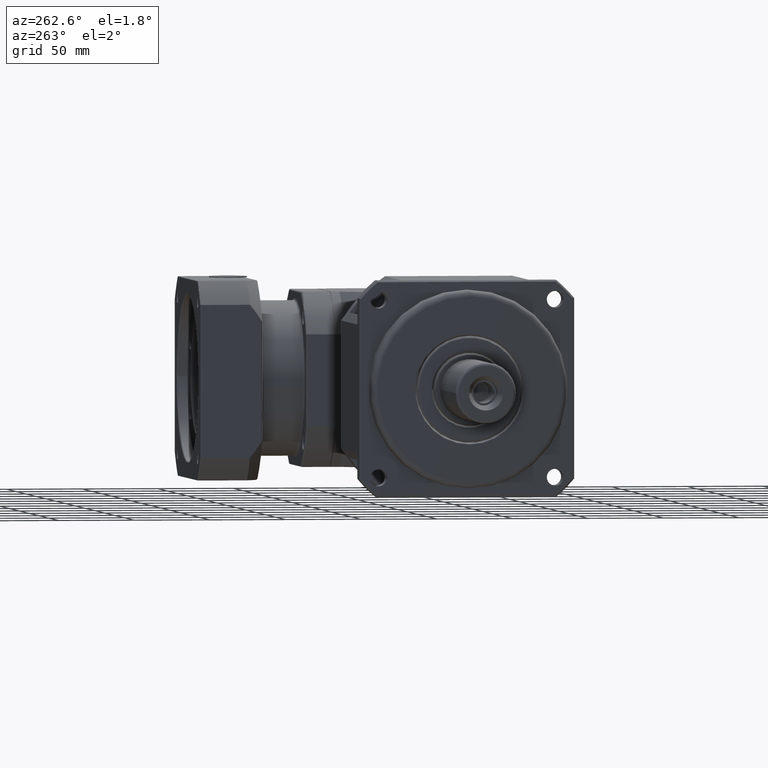
[diagram: clean part render]
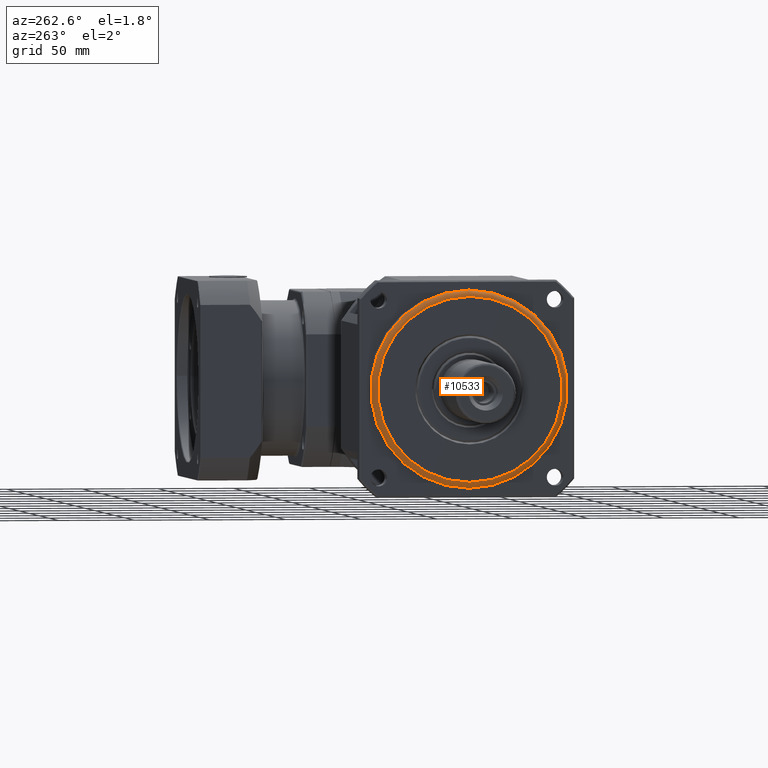
[diagram: same view with one face highlighted and labeled with its STEP entity id]
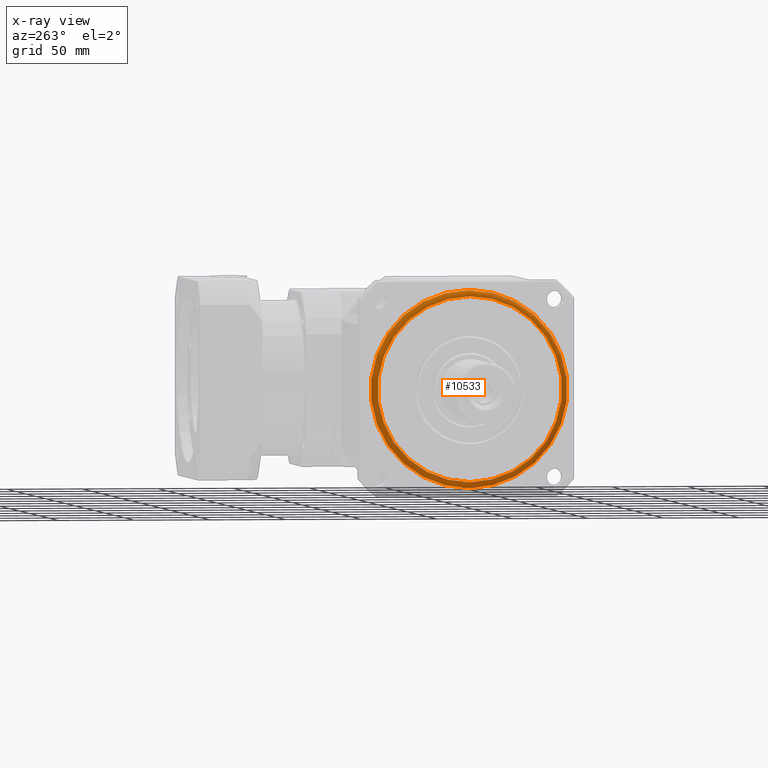
[diagram: x-ray of the same camera — body ghosted, the highlighted face saturated]
A machine part, auxiliary view. The second image highlights one B-rep face of the part: STEP entity #10533.
The next image is the same camera in x-ray: the body ghosted, the highlighted face saturated — about 0% of this face is hidden behind the body in this view.
In plain terms, the highlighted toroidal blend (fillet) surface has major radius 61 mm and minor (blend) radius 4 mm.
Its self-contained STEP definition (entity closure, byte-faithful):
#399=TOROIDAL_SURFACE('',#11626,61.,4.);
#2166=FACE_BOUND('',#3669,.T.);
#2705=FACE_OUTER_BOUND('',#3668,.T.);
#3668=EDGE_LOOP('',(#8254));
#3669=EDGE_LOOP('',(#8255));
#4355=CIRCLE('',#11625,61.);
#4356=CIRCLE('',#11627,65.);
#5078=VERTEX_POINT('',#17408);
#5079=VERTEX_POINT('',#17411);
#6211=EDGE_CURVE('',#5078,#5078,#4355,.T.);
#6212=EDGE_CURVE('',#5079,#5079,#4356,.T.);
#8254=ORIENTED_EDGE('',*,*,#6212,.T.);
#8255=ORIENTED_EDGE('',*,*,#6211,.T.);
#10533=ADVANCED_FACE('',(#2705,#2166),#399,.T.);
#11625=AXIS2_PLACEMENT_3D('',#17409,#13912,#13913);
#11626=AXIS2_PLACEMENT_3D('',#17410,#13914,#13915);
#11627=AXIS2_PLACEMENT_3D('',#17412,#13916,#13917);
#13912=DIRECTION('center_axis',(1.,1.66533453693789E-16,-7.9632751172749E-16));
#13913=DIRECTION('ref_axis',(-7.96327511727488E-16,-6.9250161160987E-15,
-1.));
#13914=DIRECTION('center_axis',(-1.,-1.66533453693789E-16,7.9632751172749E-16));
#13915=DIRECTION('ref_axis',(8.74514136320123E-16,6.88679882352097E-15,
1.));
#13916=DIRECTION('center_axis',(-1.,-1.66533453693789E-16,7.9632751172749E-16));
#13917=DIRECTION('ref_axis',(-7.96327511727489E-16,-6.9250161160987E-15,
-1.));
#17408=CARTESIAN_POINT('',(-238.232413184371,50.6418324565533,-53.0277799896558));
#17409=CARTESIAN_POINT('Origin',(-238.232413184371,50.6418324565529,-114.027779989656));
#17410=CARTESIAN_POINT('Origin',(-234.232413184371,50.6418324565529,-114.027779989656));
#17411=CARTESIAN_POINT('',(-234.232413184371,50.6418324565534,-49.0277799896558));
#17412=CARTESIAN_POINT('Origin',(-234.232413184371,50.6418324565529,-114.027779989656));